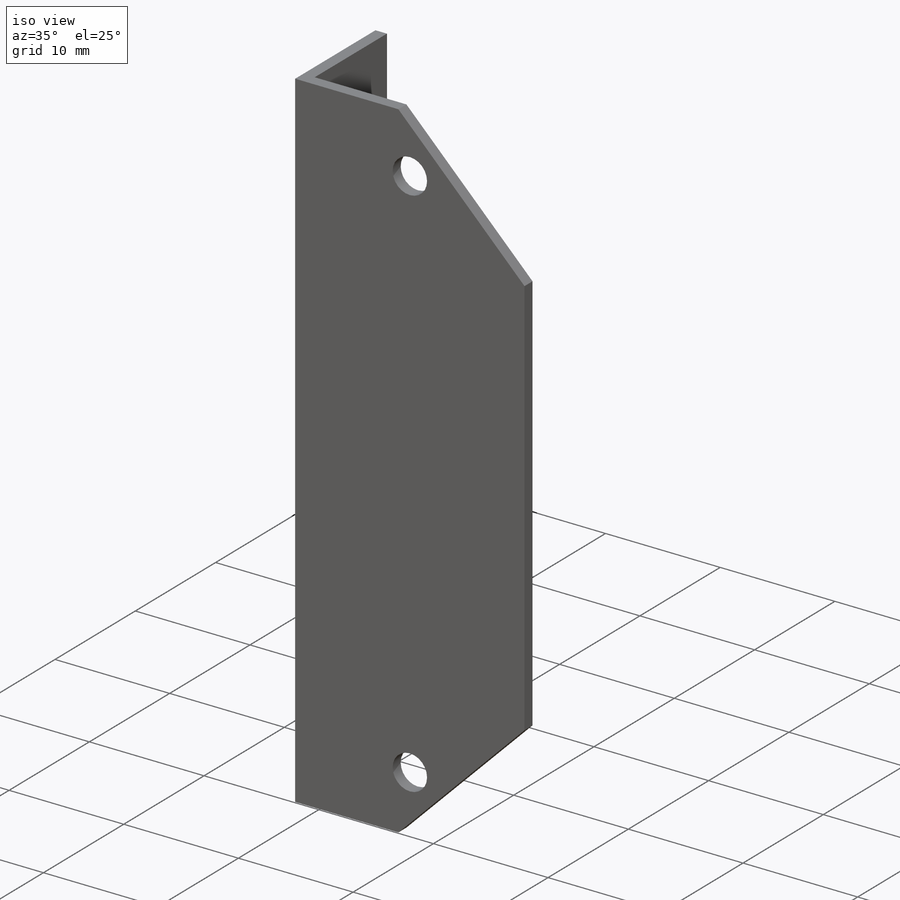
[diagram: iso view]
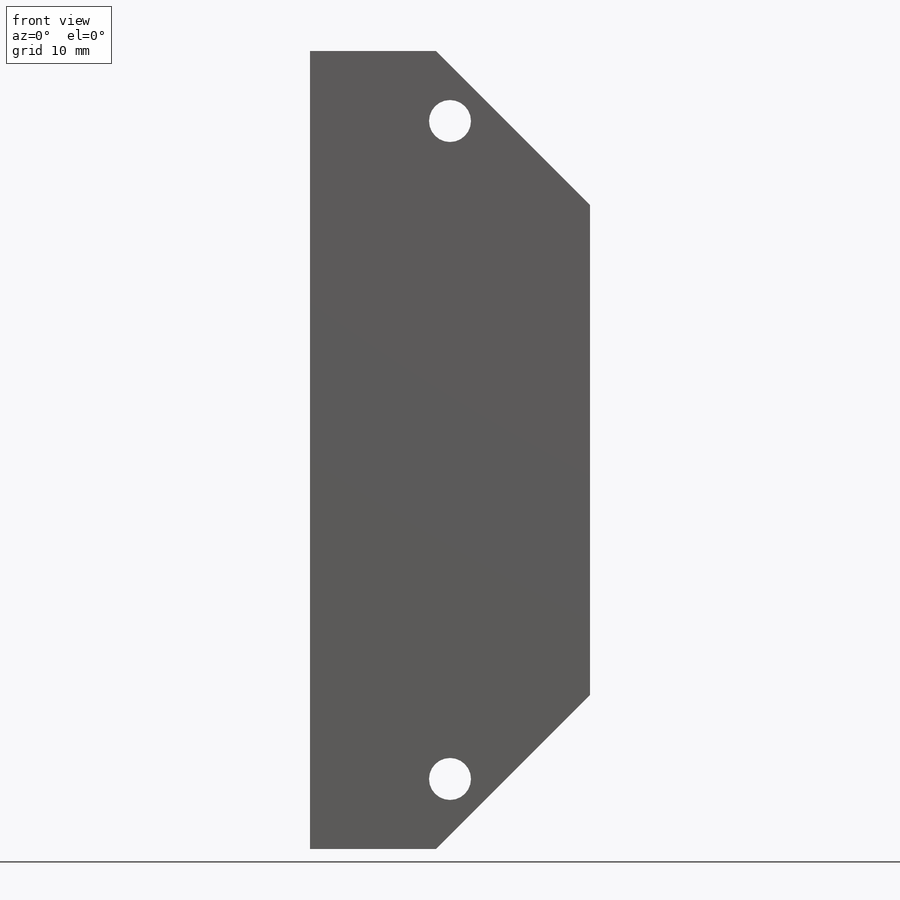
[diagram: front view]
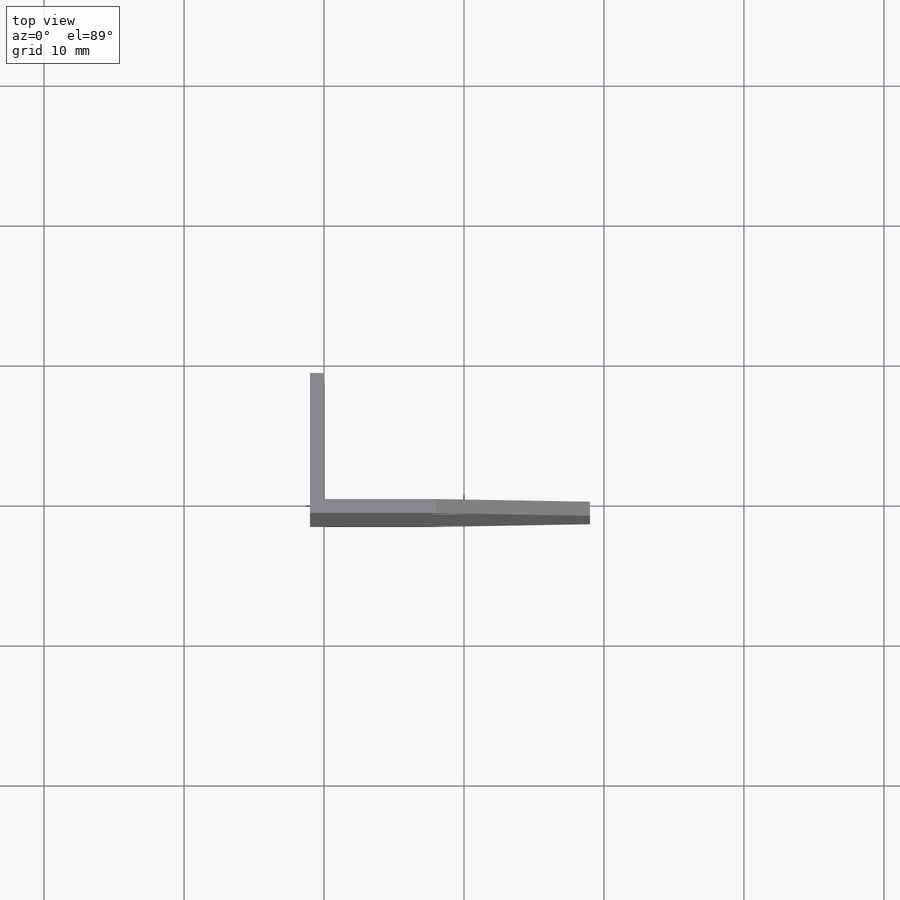
[diagram: top view]
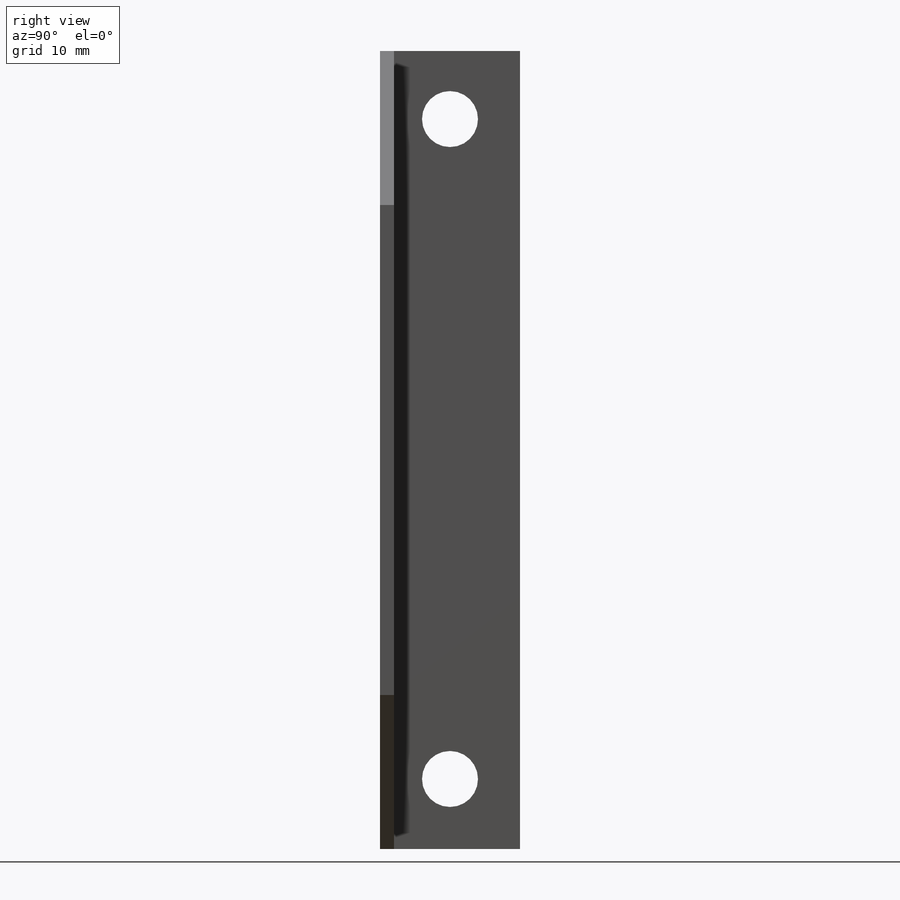
[diagram: right view]
SOLIDWORKS PART (.sldprt)
format: sldprt  version: not decoded by parser v0  size: 174,080 bytes
history: native  units: mm
features: plane x3, sketch x3, cut_extrude x2, material x1, extrude x1 (+9 scaffold rows collapsed)
feature tree (19):
  scaffold x9  (default folders/planes/origin — collapsed)
  material  "Matériau <non spécifié>"
  plane  "Plan de face"
  plane  "Plan de dessus"
  plane  "Plan de droite"
  sketch  "Esquisse1"  dims[c1.D1=~48.172549mm c1.D2=~72.87975mm c2.D1=~57.559727mm c2.D2=1.0mm c2.D3=~19.857672mm c2.D4=~41.866681mm c3.D4=90.0deg c3.D5=~41.297734mm c4.D5=90.0deg c5.D5=~19.038064mm c5.D1=1.0mm c5.D2=1.0mm c5.D3=0.5mm c5.D4=10.0mm c6.D5=10.0mm c6.D6=20.0mm c7.D5=10.0mm c7.D6=20.0mm]
  extrude  "Boss.-Extru.1"  Depth=57mm
  sketch  "Esquisse2"  dims[c1.D1=4.0mm c1.D2=4.0mm c1.D3=5.0mm c1.D4=5.0mm c1.D5=5.0mm c1.D6=5.0mm c2.D5=47.14mm]
  cut_extrude  "Enlèv. mat.-Extru.1"  Depth=50mm
  sketch  "Esquisse3"  dims[c1.D1=~16.780578mm c1.D5=3.0mm c1.D6=3.0mm c2.D1=5.0mm c2.D2=10.0mm c2.D3=10.0mm c2.D4=47.0mm c2.D7=11.0mm c2.D8=11.0mm c2.D9=11.0mm c2.D10=11.0mm]
  cut_extrude  "Enlèv. mat.-Extru.2"  Depth=50mm
decode coverage: 6 of 6 modeling features carry decoded parameters
note: ~ marks probable driven/reference dimensions
note: suppression state not decoded; provenance and decode notes live in map.json
